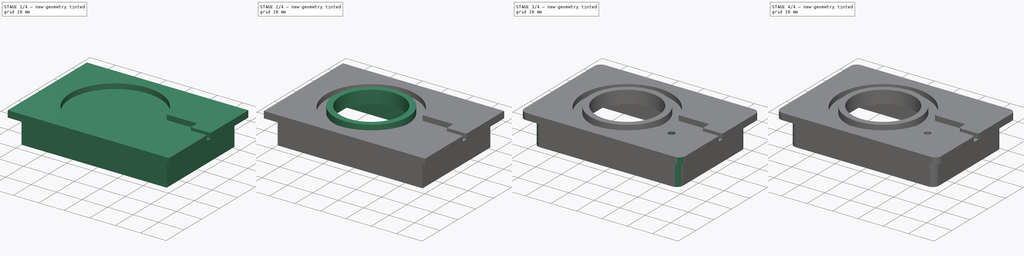
[diagram: build sequence overview — one tinted view per stage of 4, left to right]
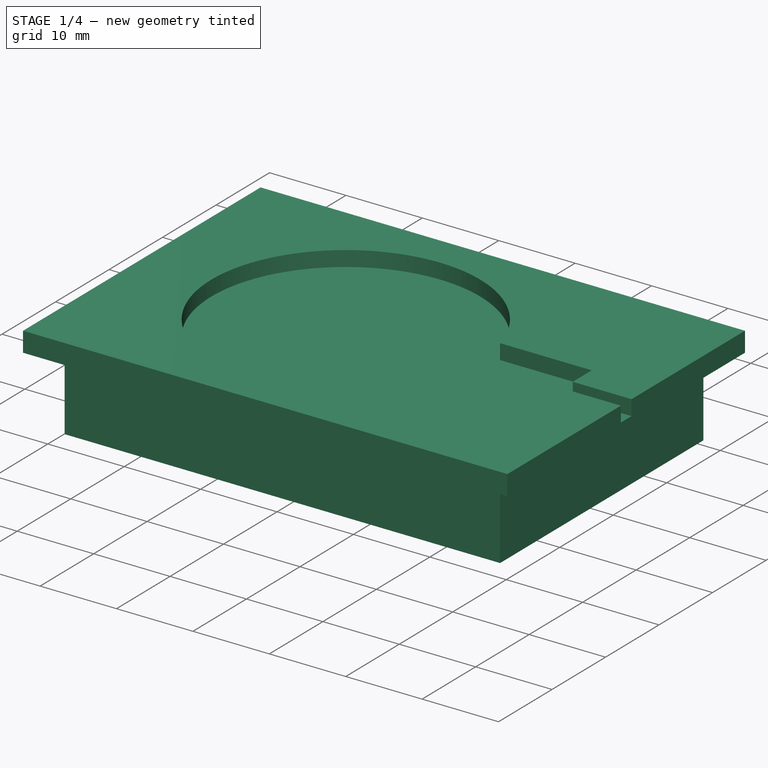
[diagram: stage 1 of 4 — iso view after this stage's code; geometry added in this stage tinted green]
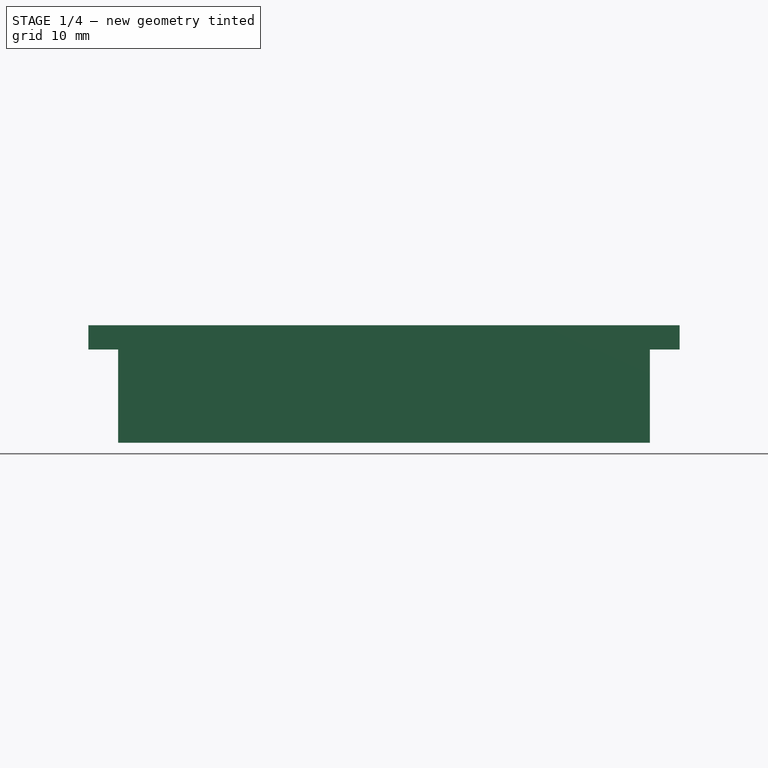
[diagram: stage 1 of 4 — front view after this stage's code; geometry added in this stage tinted green]
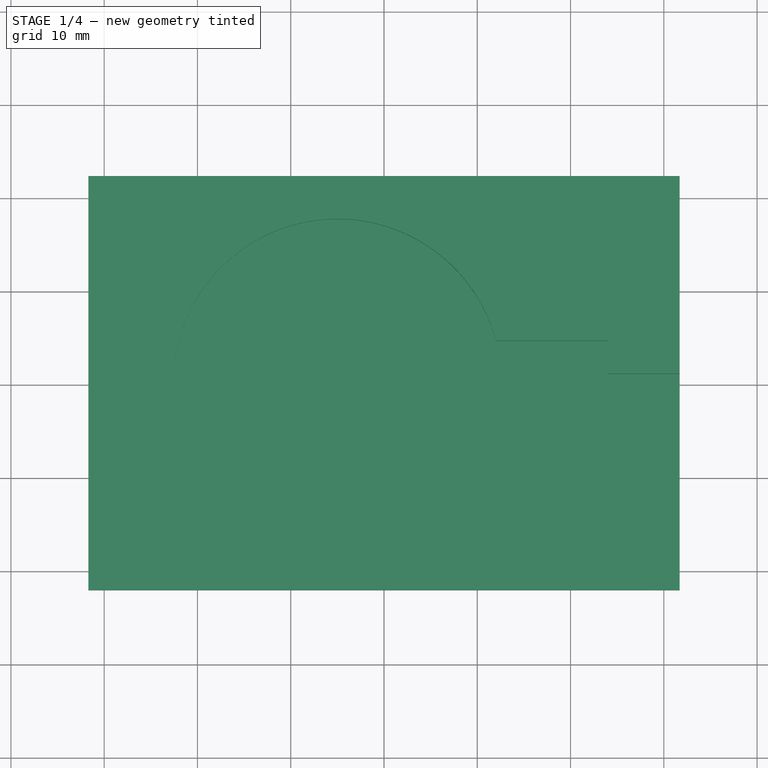
[diagram: stage 1 of 4 — top view after this stage's code; geometry added in this stage tinted green]
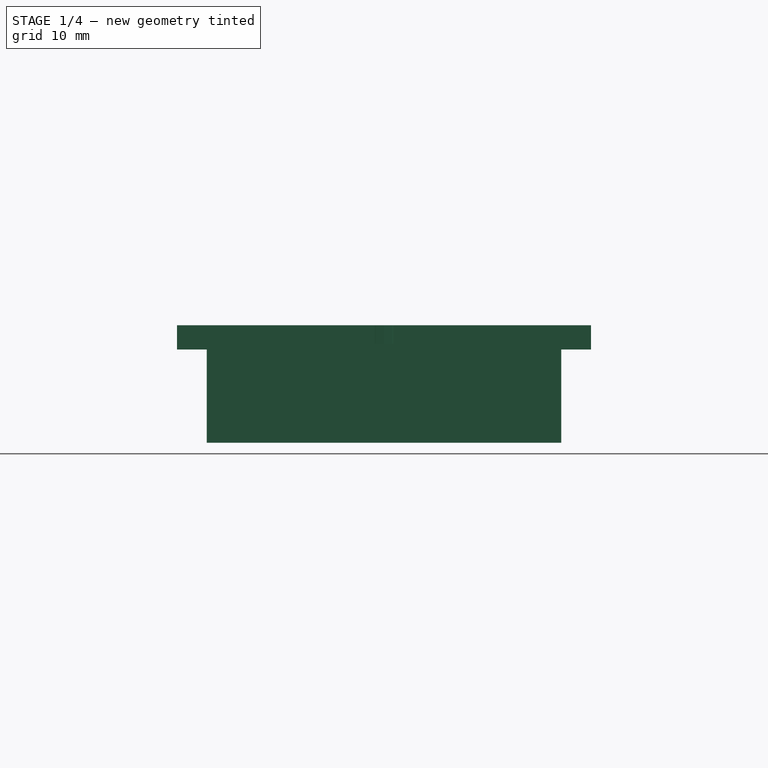
[diagram: stage 1 of 4 — right view after this stage's code; geometry added in this stage tinted green]
FCSTD DOCUMENT  (FreeCAD 0.19R24291 (Git))
Label: bruker7t_fus_single_coil
License: All rights reserved
LicenseURL: http://en.wikipedia.org/wiki/All_rights_reserved
objects: Sketcher::SketchObject×6, PartDesign::Fillet×4, PartDesign::Pad×3, PartDesign::Pocket×2, PartDesign::Hole×2, App::Part×1, PartDesign::Body×1
note: 29 computed .brp shape members not serialized (recipe doc carries the construction recipe); baked Part::Feature solids carry a one-line shape summary decoded from their .brp

FEATURE [App::Part] Part
  Origin = -> Origin
FEATURE [Sketcher::SketchObject] Sketch
  FullyConstrained = true
  MapMode = 5
  Support = -> [XY_Plane001]
  sketch-geometry (4):
    g0: LineSegment StartX=-31.7 StartY=22.2 StartZ=0 EndX=31.7 EndY=22.2 EndZ=0
    g1: LineSegment StartX=31.7 StartY=22.2 StartZ=0 EndX=31.7 EndY=-22.2 EndZ=0
    g2: LineSegment StartX=31.7 StartY=-22.2 StartZ=0 EndX=-31.7 EndY=-22.2 EndZ=0
    g3: LineSegment StartX=-31.7 StartY=-22.2 StartZ=0 EndX=-31.7 EndY=22.2 EndZ=0
  constraints (10):
    c: Coincident(g0,g1)
    c: Coincident(g1,g2)
    c: Coincident(g2,g3)
    c: Coincident(g3,g0)
    c: Horizontal(g2)
    c: Vertical(g1)
    c: Symmetric(g2,g0,g-1)
    c: Symmetric(g0,g0,g-2)
    c: DistanceX(g0,g0) = 63.4
    c: DistanceY(g3,g3) = 44.4
FEATURE [PartDesign::Pad] Pad  label="top_pad"
  Direction = (1,1,1)
  Length = 2.6
  Length2 = 0
  Profile = -> Sketch
  Refine = true
  Type = 0
FEATURE [Sketcher::SketchObject] Sketch001
  FullyConstrained = true
  MapMode = 5
  Placement = pos=(0,0,2.6) rot=(0,0,1;0rad)
  Support = -> [Pad]
  sketch-geometry (10):
    g0: LineSegment StartX=24.0003 StartY=1 StartZ=0 EndX=24.0003 EndY=4.55522 EndZ=0
    g1: LineSegment StartX=24.0003 StartY=4.55522 StartZ=0 EndX=12.0003 EndY=4.55522 EndZ=0
    g2: ArcOfCircle CenterX=-5 CenterY=0 CenterZ=0 NormalX=0 NormalY=0 NormalZ=1 AngleXU=0 Radius=17.6 StartAngle=0.261799 EndAngle=6.02139
    g3: LineSegment StartX=12.0003 StartY=-4.55522 StartZ=0 EndX=24.0003 EndY=-4.55522 EndZ=0
    g4: LineSegment StartX=24.0003 StartY=-4.55522 StartZ=0 EndX=24.0003 EndY=-1 EndZ=0
    g5: LineSegment StartX=24.0003 StartY=-1 StartZ=0 EndX=36.0003 EndY=-1 EndZ=0
    g6: LineSegment StartX=36.0003 StartY=-1 StartZ=0 EndX=36.0003 EndY=1 EndZ=0
    g7: LineSegment StartX=36.0003 StartY=1 StartZ=0 EndX=24.0003 EndY=1 EndZ=0
    g8: LineSegment StartX=-5 StartY=0 StartZ=0 EndX=12.0003 EndY=-4.55522 EndZ=0
    g9: LineSegment StartX=-5 StartY=0 StartZ=0 EndX=12.0003 EndY=4.55522 EndZ=0
  constraints (30):
    c: Coincident(g0,g1)
    c: Horizontal(g1)
    c: Coincident(g2,g3)
    c: Horizontal(g3)
    c: Coincident(g3,g4)
    c: Coincident(g4,g5)
    c: Horizontal(g5)
    c: Coincident(g5,g6)
    c: Vertical(g6)
    c: Coincident(g6,g7)
    c: Horizontal(g7)
    c: Vertical(g4)
    c: Vertical(g0)
    c: Equal(g4,g0)
    c: Equal(g1,g3)
    c: PointOnObject(g2,g-1)
    c: Radius(g2) = 17.6
    c: Coincident(g1,g2)
    c: PointOnObject(g2,g-1)
    c: Coincident(g8,g2)
    c: Coincident(g8,g2)
    c: Angle(g8,g-1) = 0.261799
    c: Coincident(g9,g2)
    c: Coincident(g9,g1)
    c: Angle(g-1,g9) = 0.261799
    c: DistanceX(g2,g-1) = 5
    c: DistanceY(g6,g6) = 2
    c: DistanceX(g5,g5) = 12
    c: DistanceX(g3,g3) = 12
    c: Coincident(g7,g0)
FEATURE [PartDesign::Pocket] Pocket  label="top_pocket"
  BaseFeature = -> Pad
  Length = 2
  Length2 = 100
  Profile = -> Sketch001
  Refine = true
  Type = 0
FEATURE [Sketcher::SketchObject] Sketch002
  FullyConstrained = true
  MapMode = 5
  Placement = pos=(0,0,0) rot=(1,0,0;3.14159rad)
  Support = -> [Pocket]
  sketch-geometry (4):
    g0: LineSegment StartX=-28.5 StartY=19 StartZ=0 EndX=28.5 EndY=19 EndZ=0
    g1: LineSegment StartX=28.5 StartY=19 StartZ=0 EndX=28.5 EndY=-19 EndZ=0
    g2: LineSegment StartX=28.5 StartY=-19 StartZ=0 EndX=-28.5 EndY=-19 EndZ=0
    g3: LineSegment StartX=-28.5 StartY=-19 StartZ=0 EndX=-28.5 EndY=19 EndZ=0
  constraints (10):
    c: Coincident(g0,g1)
    c: Coincident(g1,g2)
    c: Coincident(g2,g3)
    c: Coincident(g3,g0)
    c: Horizontal(g2)
    c: Vertical(g1)
    c: Symmetric(g2,g0,g-1)
    c: Symmetric(g0,g0,g-2)
    c: DistanceY(g3,g3) = 38
    c: DistanceX(g2,g2) = 57
FEATURE [PartDesign::Pad] Pad001  label="bottom_box_pad"
  BaseFeature = -> Pocket
  Direction = (1,1,1)
  Length = 10
  Length2 = 100
  Profile = -> Sketch002
  Refine = true
  Type = 0
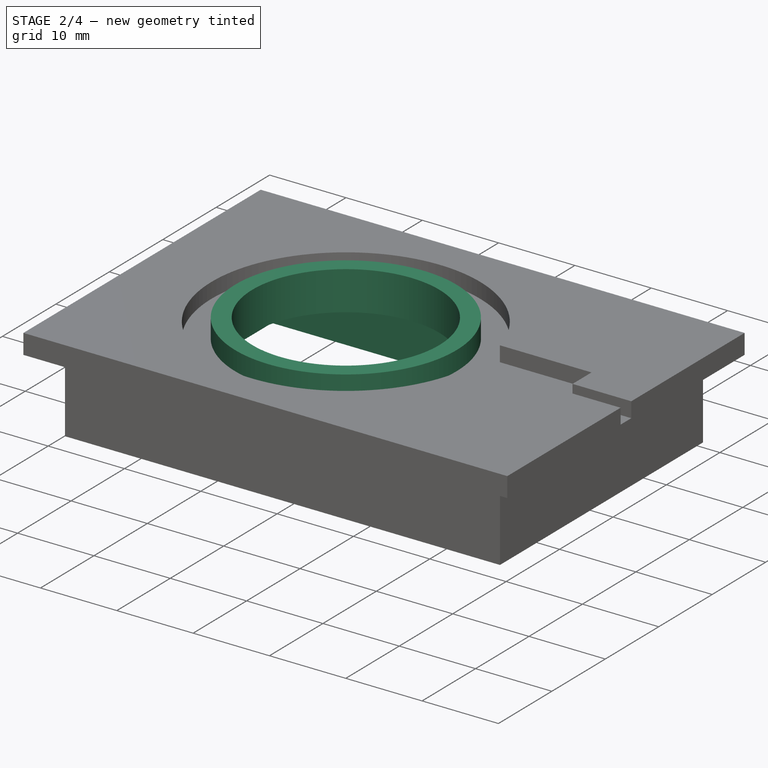
[diagram: stage 2 of 4 — iso view after this stage's code; geometry added in this stage tinted green]
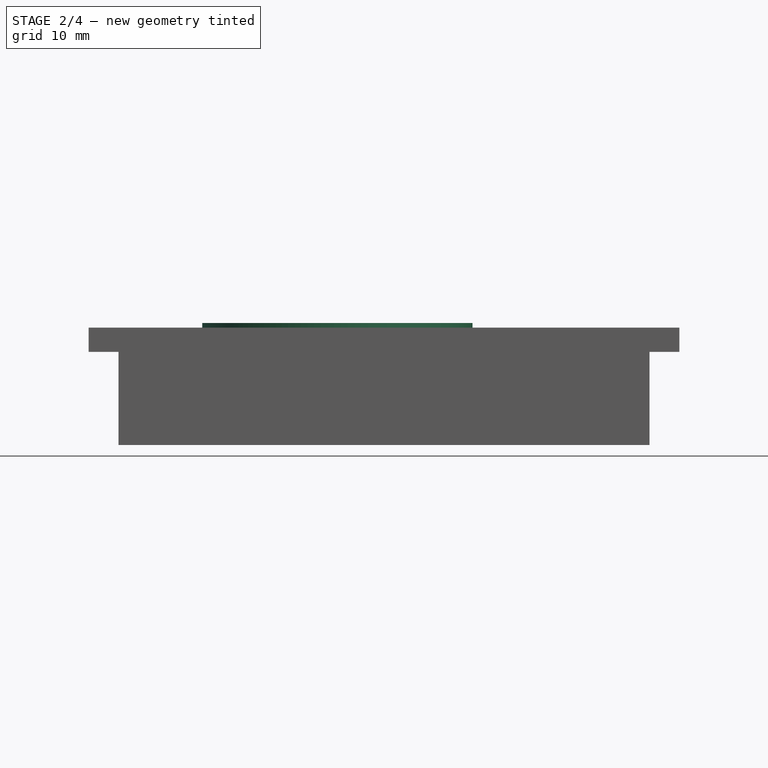
[diagram: stage 2 of 4 — front view after this stage's code; geometry added in this stage tinted green]
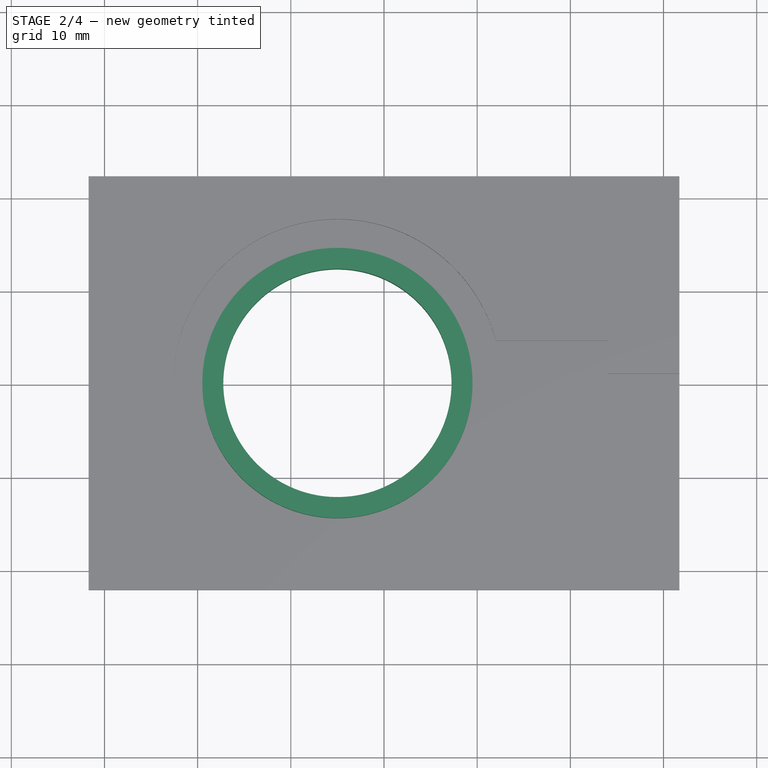
[diagram: stage 2 of 4 — top view after this stage's code; geometry added in this stage tinted green]
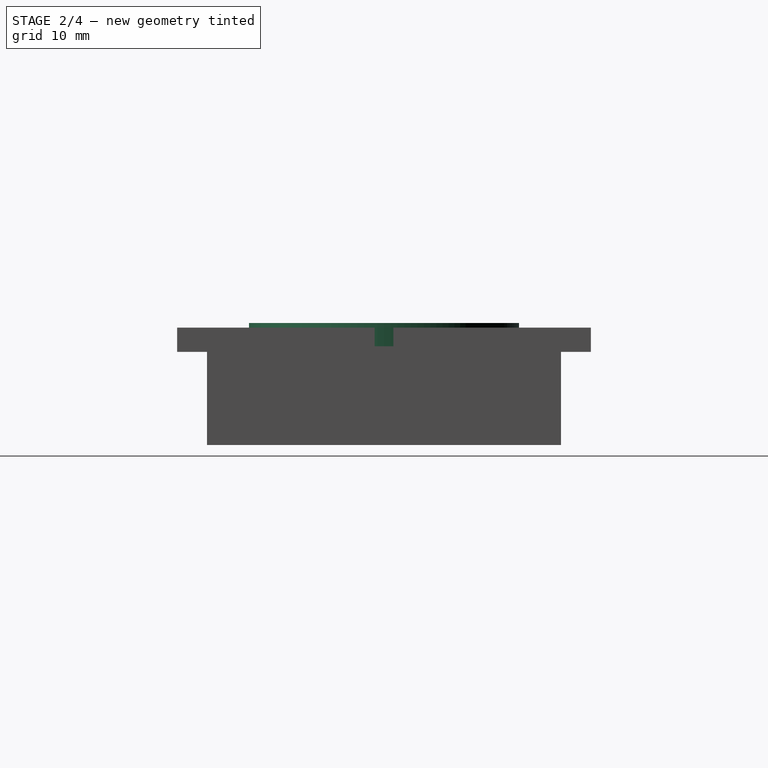
[diagram: stage 2 of 4 — right view after this stage's code; geometry added in this stage tinted green]
FEATURE [Sketcher::SketchObject] Sketch003
  FullyConstrained = true
  MapMode = 5
  Placement = pos=(0,0,-10) rot=(1,0,0;3.14159rad)
  Support = -> [Pad001]
  sketch-geometry (4):
    g0: LineSegment StartX=-26.8 StartY=17.3 StartZ=0 EndX=26.8 EndY=17.3 EndZ=0
    g1: LineSegment StartX=26.8 StartY=17.3 StartZ=0 EndX=26.8 EndY=-17.3 EndZ=0
    g2: LineSegment StartX=26.8 StartY=-17.3 StartZ=0 EndX=-26.8 EndY=-17.3 EndZ=0
    g3: LineSegment StartX=-26.8 StartY=-17.3 StartZ=0 EndX=-26.8 EndY=17.3 EndZ=0
  constraints (10):
    c: Coincident(g0,g1)
    c: Coincident(g1,g2)
    c: Coincident(g2,g3)
    c: Coincident(g3,g0)
    c: Horizontal(g2)
    c: Vertical(g1)
    c: Symmetric(g0,g2,g-1)
    c: Symmetric(g0,g0,g-2)
    c: DistanceX(g0,g0) = 53.6
    c: DistanceY(g3,g3) = 34.6
FEATURE [PartDesign::Pocket] Pocket001  label="bottom_box_pocket"
  BaseFeature = -> Pad001
  Length = 8
  Length2 = 100
  Profile = -> Sketch003
  Refine = true
  Type = 0
FEATURE [Sketcher::SketchObject] Sketch004
  FullyConstrained = true
  MapMode = 5
  Placement = pos=(0,0,0.6) rot=(0,0,1;0rad)
  Support = -> [Pocket001]
  sketch-geometry (2):
    g0: Circle CenterX=-5 CenterY=0 CenterZ=0 NormalX=0 NormalY=0 NormalZ=1 AngleXU=0 Radius=16
    g1: Circle CenterX=-5 CenterY=0 CenterZ=0 NormalX=0 NormalY=0 NormalZ=1 AngleXU=0 Radius=14.5
  constraints (5):
    c: Radius(g0) = 16
    c: PointOnObject(g0,g-1)
    c: DistanceX(g0,g-1) = 5
    c: Coincident(g0,g1)
    c: Radius(g1) = 14.5
FEATURE [PartDesign::Pad] Pad002
  BaseFeature = -> Pocket001
  Direction = (1,1,1)
  Length = 2.5
  Length2 = 100
  Profile = -> Sketch004
  Refine = true
  Type = 0
FEATURE [PartDesign::Hole] Hole  label="central_hole"
  BaseFeature = -> Pad002
  Depth = 25
  DepthType = 0
  Diameter = 24.5
  DrillForDepth = false
  DrillPoint = 0
  DrillPointAngle = 118
  HoleCutCountersinkAngle = 90
  HoleCutCustomValues = false
  HoleCutDepth = 0
  HoleCutDiameter = 17.1
  HoleCutType = 0
  ModelActualThread = false
  Profile = -> Pad002 [Face21]
  Refine = true
  Tapered = false
  TaperedAngle = 90
  ThreadAngle = 0
  ThreadClass = 0
  ThreadCutOffInner = 0
  ThreadCutOffOuter = 0
  ThreadDirection = 0
  ThreadFit = 0
  ThreadPitch = 0
  ThreadSize = 0
  ThreadType = 0
  Threaded = false
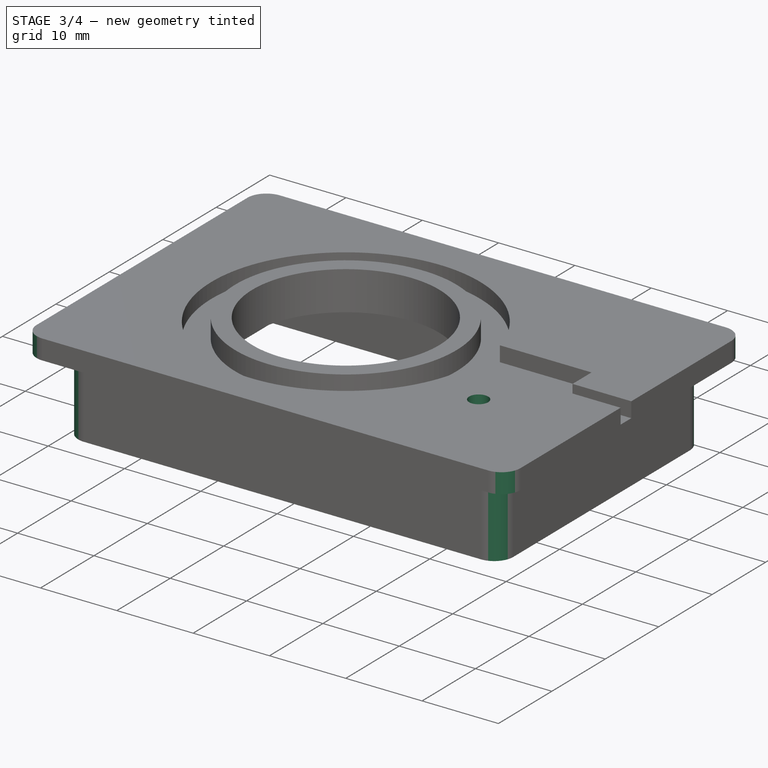
[diagram: stage 3 of 4 — iso view after this stage's code; geometry added in this stage tinted green]
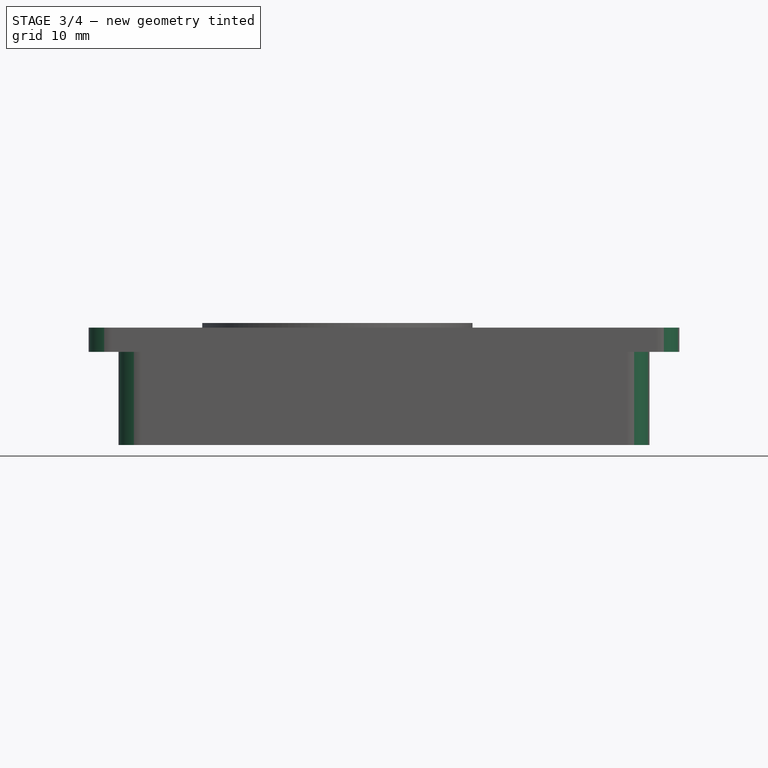
[diagram: stage 3 of 4 — front view after this stage's code; geometry added in this stage tinted green]
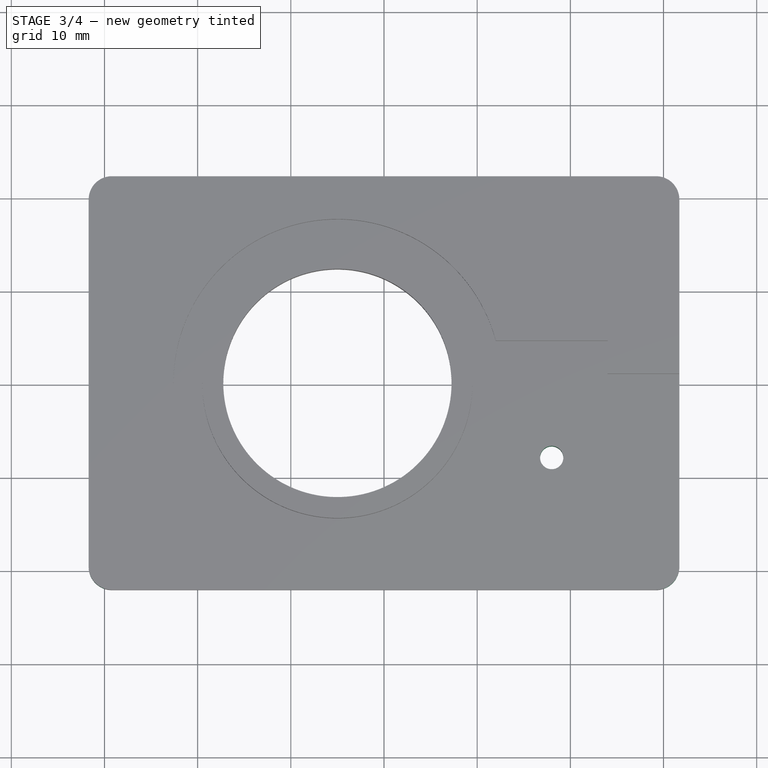
[diagram: stage 3 of 4 — top view after this stage's code; geometry added in this stage tinted green]
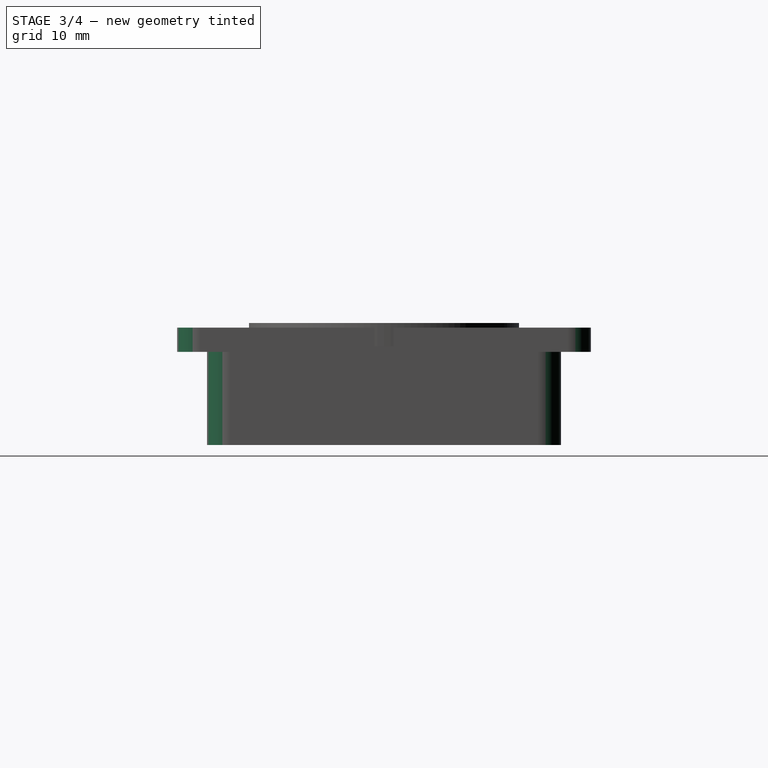
[diagram: stage 3 of 4 — right view after this stage's code; geometry added in this stage tinted green]
FEATURE [Sketcher::SketchObject] Sketch005
  FullyConstrained = true
  MapMode = 5
  Placement = pos=(0,0,5) rot=(0,0,1;0rad)
  sketch-geometry (1):
    g0: Circle CenterX=18 CenterY=-8 CenterZ=0 NormalX=0 NormalY=0 NormalZ=1 AngleXU=0 Radius=2
  constraints (3):
    c: DistanceX(g-1,g0) = 18
    c: DistanceY(g0,g-1) = 8
    c: Radius(g0) = 2
FEATURE [PartDesign::Hole] Hole001  label="water_fill_hole"
  BaseFeature = -> Hole
  Depth = 25
  DepthType = 0
  Diameter = 2.5
  DrillForDepth = false
  DrillPoint = 1
  DrillPointAngle = 118
  HoleCutCountersinkAngle = 90
  HoleCutCustomValues = false
  HoleCutDepth = 0
  HoleCutDiameter = 6.1
  HoleCutType = 0
  ModelActualThread = false
  Profile = -> Sketch005
  Refine = true
  Tapered = false
  TaperedAngle = 90
  ThreadAngle = 0
  ThreadClass = 0
  ThreadCutOffInner = 0
  ThreadCutOffOuter = 0
  ThreadDirection = 0
  ThreadFit = 0
  ThreadPitch = 0
  ThreadSize = 0
  ThreadType = 0
  Threaded = false
FEATURE [PartDesign::Fillet] Fillet001
  Base = -> Hole001 [Edge9,Edge44,Edge40,Edge5,Edge1,Edge39,Edge42,Edge2]
  BaseFeature = -> Hole001
  Radius = 2.5
  Refine = true
  SupportTransform = false
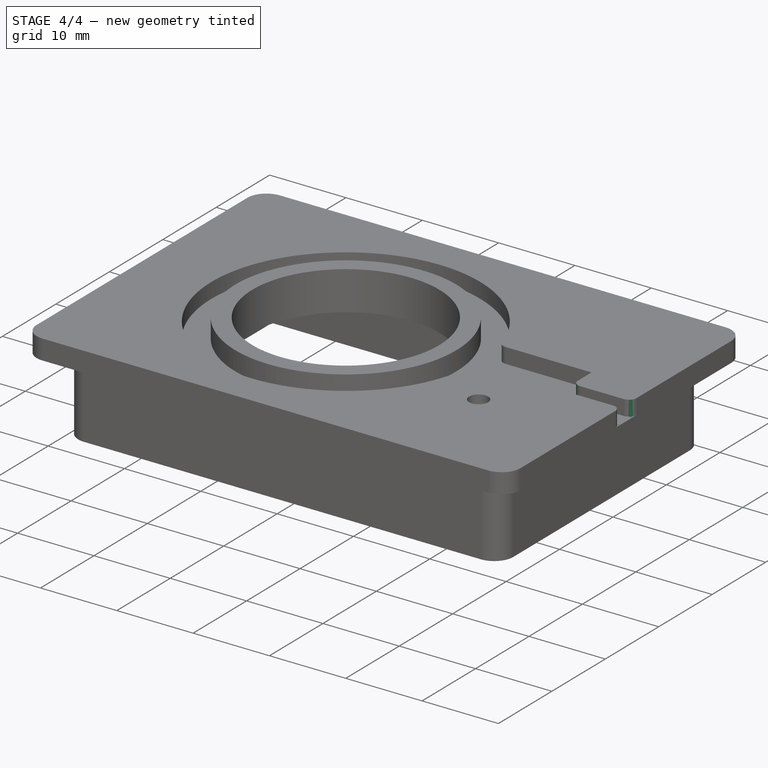
[diagram: stage 4 of 4 — iso view after this stage's code; geometry added in this stage tinted green]
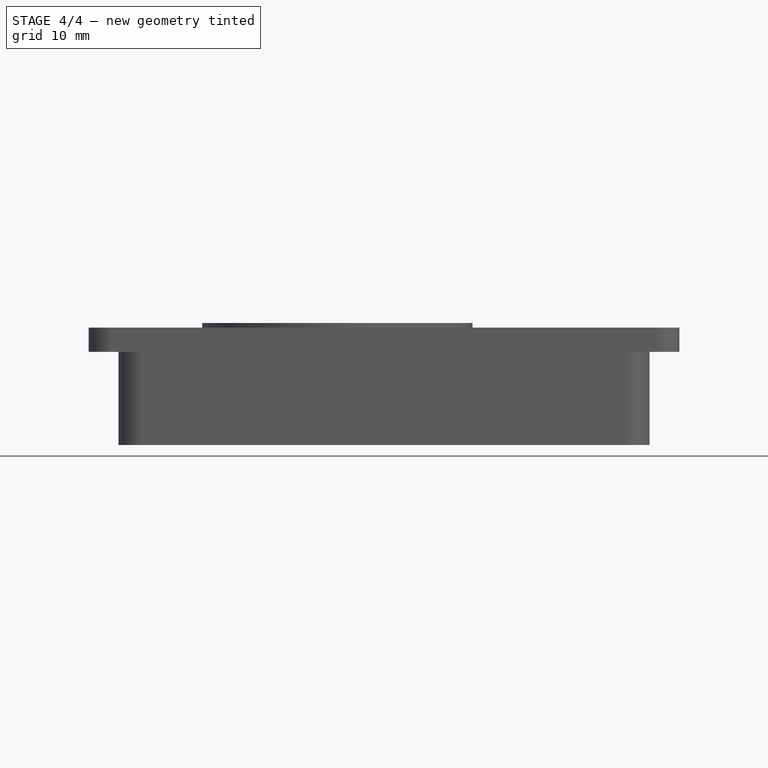
[diagram: stage 4 of 4 — front view after this stage's code; geometry added in this stage tinted green]
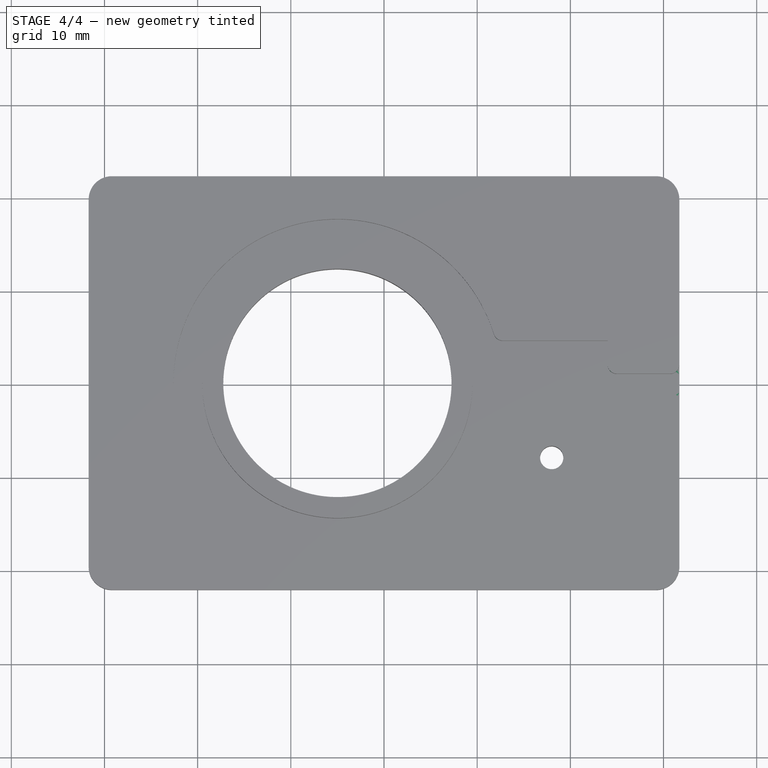
[diagram: stage 4 of 4 — top view after this stage's code; geometry added in this stage tinted green]
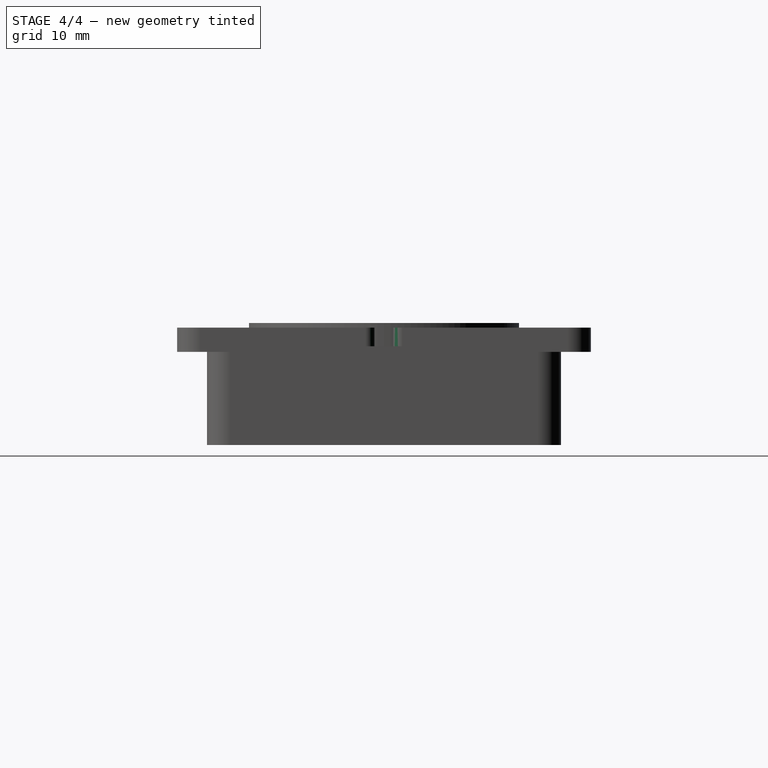
[diagram: stage 4 of 4 — right view after this stage's code; geometry added in this stage tinted green]
FEATURE [PartDesign::Fillet] Fillet
  Base = -> Fillet001 [Edge40,Edge41]
  BaseFeature = -> Fillet001
  Radius = 1
  Refine = true
  SupportTransform = false
FEATURE [PartDesign::Fillet] Fillet002
  Base = -> Fillet [Edge40,Edge44]
  BaseFeature = -> Fillet
  Radius = 1
  Refine = true
  SupportTransform = false
FEATURE [PartDesign::Fillet] Fillet003
  Base = -> Fillet002 [Edge27,Edge46]
  BaseFeature = -> Fillet002
  Radius = 1
  Refine = true
  SupportTransform = false
FEATURE [PartDesign::Body] Body
  Group = -> [Sketch,Pad,Sketch001,Pocket,Sketch002,Pad001,Sketch003,Pocket001,Sketch004,Pad002,Hole,Sketch005,Hole001,Fillet001,Fillet,Fillet002,Fillet003]
  Origin = -> Origin001
  Tip = -> Fillet003
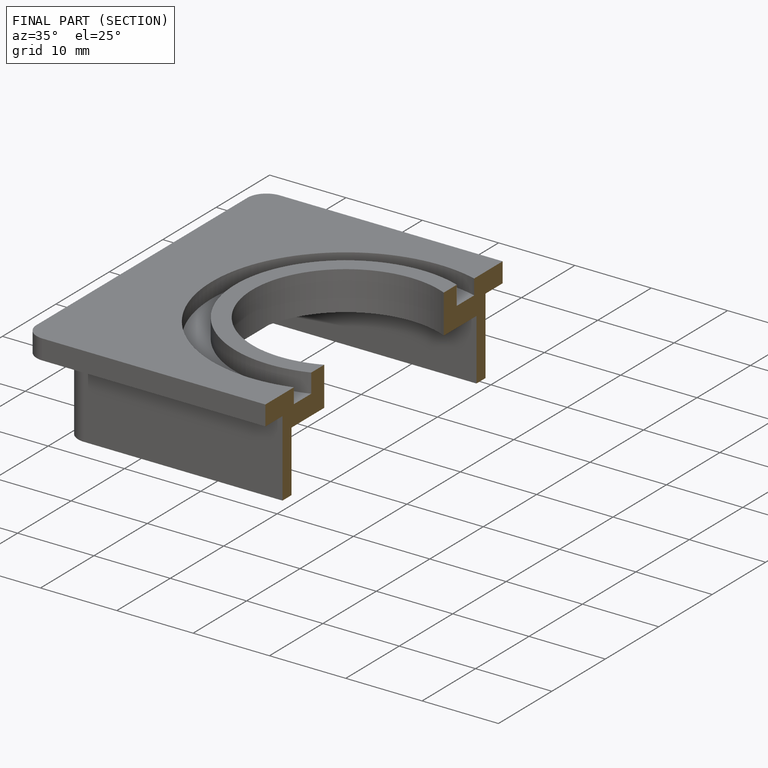
[diagram: finished part — half-section view (interior)]
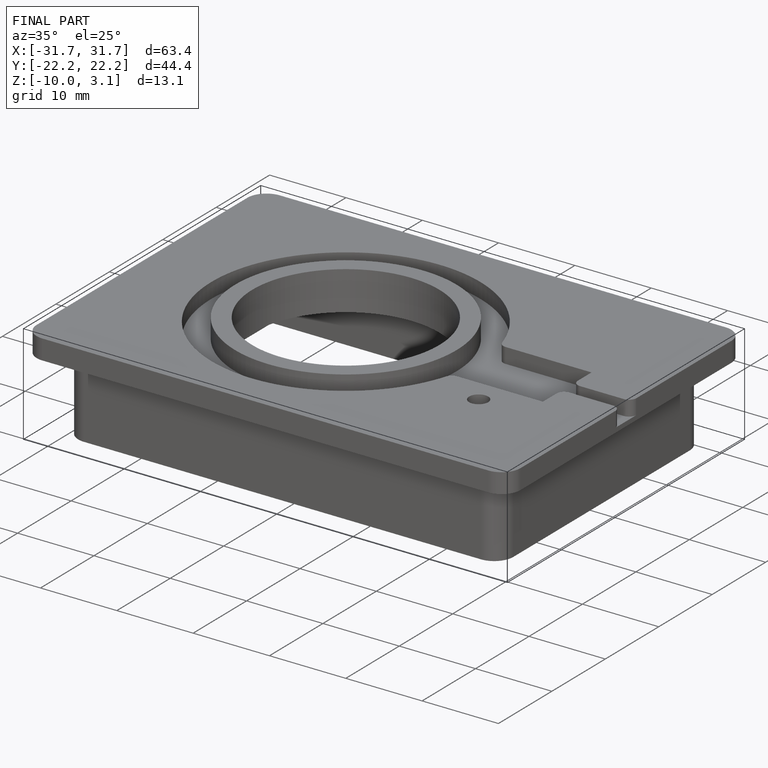
[diagram: finished part — iso view with bounding-box wireframe]
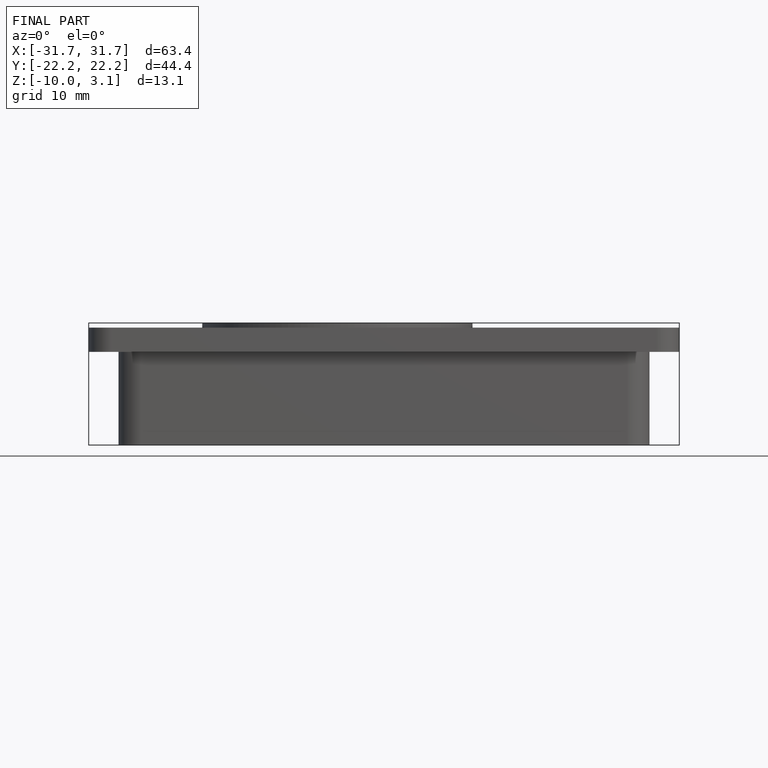
[diagram: finished part — front view with bounding-box wireframe]
